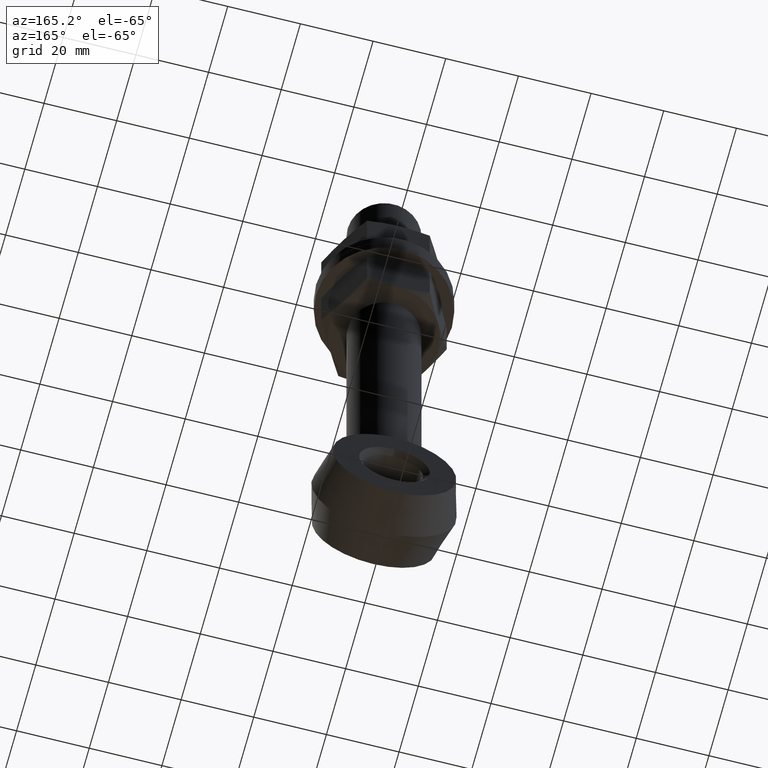
[diagram: clean part render]
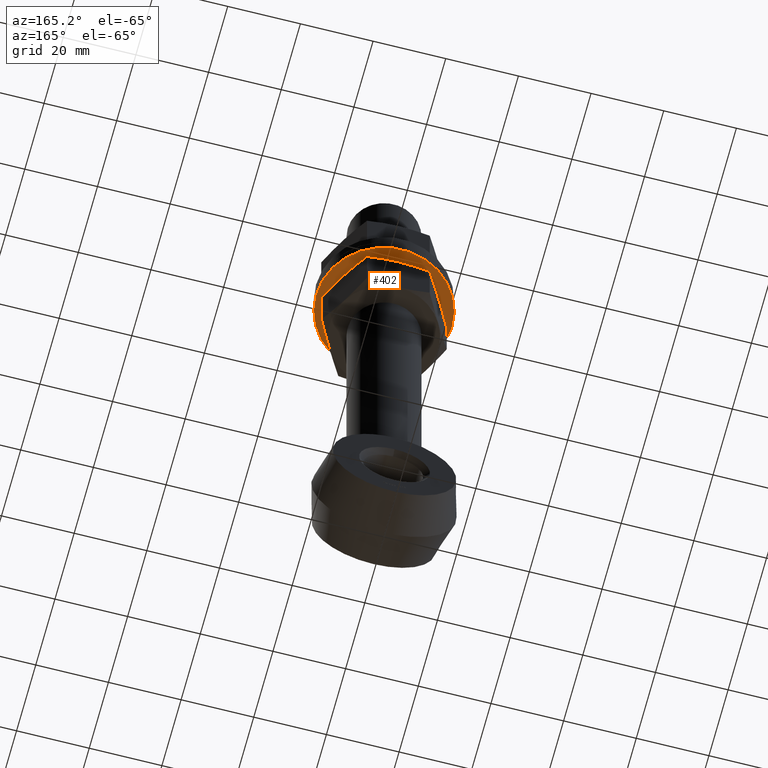
[diagram: same view with one face highlighted and labeled with its STEP entity id]
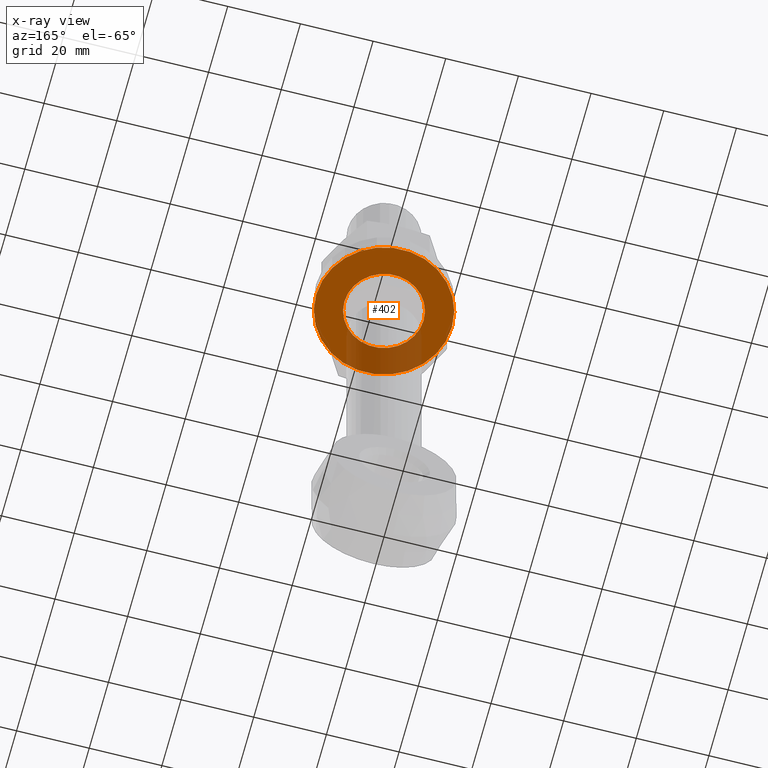
[diagram: x-ray of the same camera — body ghosted, the highlighted face saturated]
A machine part, auxiliary view. The second image highlights one B-rep face of the part: STEP entity #402.
The next image is the same camera in x-ray: the body ghosted, the highlighted face saturated — about 24% of this face is hidden behind the body in this view.
In plain terms, the highlighted planar face has unit normal (0, 0, 1).
Its self-contained STEP definition (entity closure, byte-faithful):
#9 = VERTEX_POINT ( 'NONE', #5399 ) ;
#402 = ADVANCED_FACE ( 'NONE', ( #6697, #2144 ), #856, .F. ) ;
#507 = AXIS2_PLACEMENT_3D ( 'NONE', #6755, #2450, #2973 ) ;
#856 = PLANE ( 'NONE',  #507 ) ;
#1166 = CARTESIAN_POINT ( 'NONE',  ( 18.69999999999999929, 0.000000000000000000, -1.599999999999990319 ) ) ;
#1572 = EDGE_LOOP ( 'NONE', ( #6045 ) ) ;
#1716 = AXIS2_PLACEMENT_3D ( 'NONE', #3925, #6538, #4960 ) ;
#2144 = FACE_BOUND ( 'NONE', #1572, .T. ) ;
#2450 = DIRECTION ( 'NONE',  ( 0.000000000000000000, 0.000000000000000000, 1.000000000000000000 ) ) ;
#2629 = DIRECTION ( 'NONE',  ( 0.000000000000000000, 0.000000000000000000, 1.000000000000000000 ) ) ;
#2973 = DIRECTION ( 'NONE',  ( 1.000000000000000000, 0.000000000000000000, -0.000000000000000000 ) ) ;
#2990 = EDGE_CURVE ( 'NONE', #3361, #3361, #5711, .T. ) ;
#3339 = EDGE_LOOP ( 'NONE', ( #5476 ) ) ;
#3361 = VERTEX_POINT ( 'NONE', #1166 ) ;
#3648 = CARTESIAN_POINT ( 'NONE',  ( 0.000000000000000000, 0.000000000000000000, -1.599999999999990319 ) ) ;
#3925 = CARTESIAN_POINT ( 'NONE',  ( 0.000000000000000000, 0.000000000000000000, -1.599999999999990319 ) ) ;
#4130 = CIRCLE ( 'NONE', #5054, 10.90000000000000036 ) ;
#4629 = EDGE_CURVE ( 'NONE', #9, #9, #4130, .T. ) ;
#4960 = DIRECTION ( 'NONE',  ( 1.000000000000000000, 0.000000000000000000, 0.000000000000000000 ) ) ;
#5054 = AXIS2_PLACEMENT_3D ( 'NONE', #3648, #2629, #5756 ) ;
#5399 = CARTESIAN_POINT ( 'NONE',  ( 10.90000000000000036, 0.000000000000000000, -1.599999999999990319 ) ) ;
#5476 = ORIENTED_EDGE ( 'NONE', *, *, #2990, .F. ) ;
#5711 = CIRCLE ( 'NONE', #1716, 18.69999999999999929 ) ;
#5756 = DIRECTION ( 'NONE',  ( 1.000000000000000000, 0.000000000000000000, 0.000000000000000000 ) ) ;
#6045 = ORIENTED_EDGE ( 'NONE', *, *, #4629, .T. ) ;
#6538 = DIRECTION ( 'NONE',  ( 0.000000000000000000, 0.000000000000000000, 1.000000000000000000 ) ) ;
#6697 = FACE_OUTER_BOUND ( 'NONE', #3339, .T. ) ;
#6755 = CARTESIAN_POINT ( 'NONE',  ( 0.000000000000000000, 0.000000000000000000, -1.599999999999990319 ) ) ;